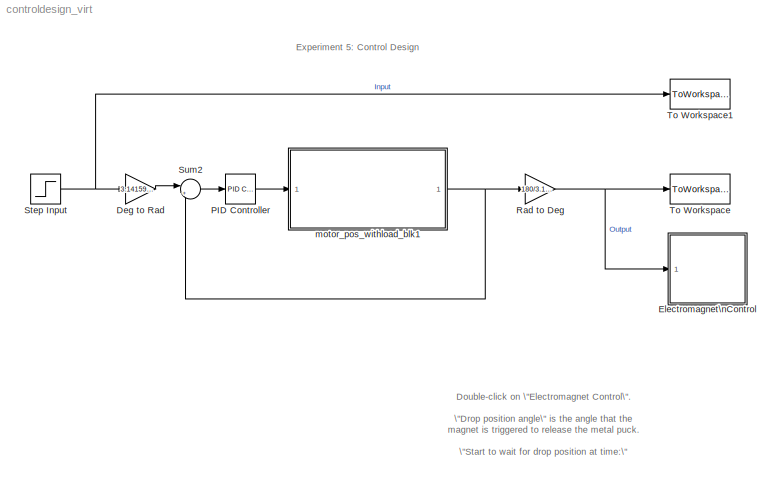
MODEL controldesign_virt
KIND model
CONFIG StopFcn = save_system(vars.simfilename);
BLOCK [Gain] Deg to Rad
  Gain = 3.14159/180
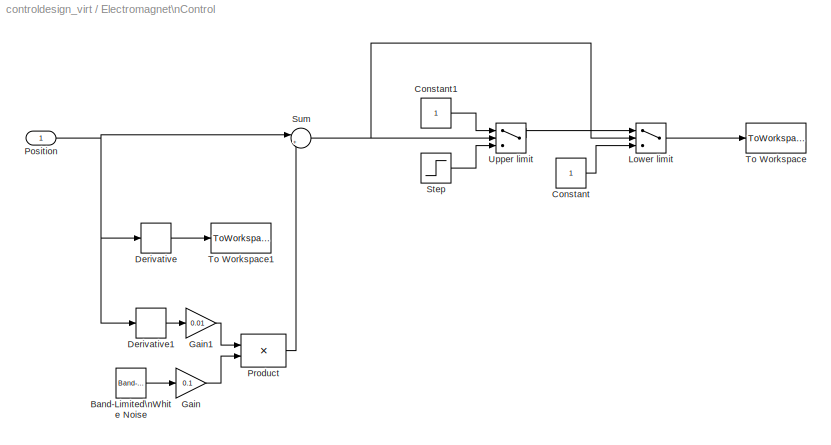
BLOCK [SubSystem] Electromagnet\nControl
  MaskCallbackString = |
  MaskEnableString = on,on
  MaskHideContents = off
  MaskIconFrame = on
  MaskIconOpaque = on
  MaskIconRotate = none
  MaskIconUnits = autoscale
  MaskPromptString = Drop position angle|Start to wait for drop position at time:
  MaskStyleString = edit,edit
  MaskTabNameString = ,
  MaskToolTipString = on,on
  MaskTunableValueString = on,on
  MaskValueString = -500|1.6
  MaskVarAliasString = ,
  MaskVariables = DropAngle=@1;Wait=@2;
  MaskVisibilityString = on,on
  MinAlgLoopOccurrences = off
  Ports = [1]
  RTWSystemCode = Auto
  TreatAsAtomicUnit = off
BLOCK [Reference] Electromagnet\nControl/Band-Limited\nWhite Noise  REF=simulink/Sources/Band-Limited\nWhite Noise
  Cov = [0.01]
  Ports = [0, 1]
  ShowPortLabels = on
  SourceBlock = simulink/Sources/Band-Limited\nWhite Noise
  SourceType = Band-Limited White Noise.
  Ts = 0.01
  VectorParams1D = on
  seed = [23341]
BLOCK [Constant] Electromagnet\nControl/Constant
BLOCK [Constant] Electromagnet\nControl/Constant1
BLOCK [Derivative] Electromagnet\nControl/Derivative
BLOCK [Derivative] Electromagnet\nControl/Derivative1
BLOCK [Gain] Electromagnet\nControl/Gain
  Gain = 0.1
BLOCK [Gain] Electromagnet\nControl/Gain1
  Gain = 0.01
BLOCK [Switch] Electromagnet\nControl/Lower limit
  Threshold = DropAngle
BLOCK [Inport] Electromagnet\nControl/Position
  IconDisplay = Port number
BLOCK [Product] Electromagnet\nControl/Product
  Ports = [2, 1]
BLOCK [Step] Electromagnet\nControl/Step
  After = 0
  Before = 1
  SampleTime = 0
  Time = Wait
BLOCK [Sum] Electromagnet\nControl/Sum
  IconShape = round
  Inputs = |++
  Ports = [2, 1]
BLOCK [ToWorkspace] Electromagnet\nControl/To Workspace
  MaxDataPoints = inf
  SampleTime = -1
  SaveFormat = Structure With Time
  VariableName = magnet
BLOCK [ToWorkspace] Electromagnet\nControl/To Workspace1
  MaxDataPoints = inf
  SampleTime = -1
  SaveFormat = Structure With Time
  VariableName = velocity
BLOCK [Switch] Electromagnet\nControl/Upper limit
  Threshold = DropAngle+1
BLOCK [Reference] PID Controller  REF=simulink_extras/Additional\nLinear/PID Controller
  D = .1
  I = 0
  P = 68
  Ports = [1, 1]
  ShowPortLabels = on
  SourceBlock = simulink_extras/Additional\nLinear/PID Controller
  SourceType = PID Controller
BLOCK [Gain] Rad to Deg
  Gain = 180/3.14159
BLOCK [Step] Step Input
  After = -500
  SampleTime = 0
  Time = 0.5
BLOCK [Sum] Sum2
  IconShape = round
  Inputs = |+-
  Ports = [2, 1]
BLOCK [ToWorkspace] To Workspace
  MaxDataPoints = inf
  SampleTime = -1
  SaveFormat = Structure With Time
  VariableName = output
BLOCK [ToWorkspace] To Workspace1
  MaxDataPoints = inf
  SampleTime = -1
  SaveFormat = Structure With Time
  VariableName = input
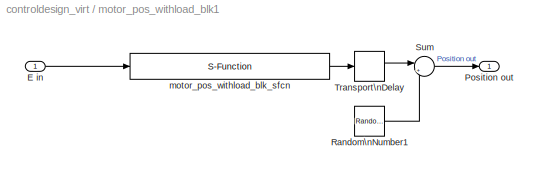
BLOCK [SubSystem] motor_pos_withload_blk1
  MaskDescription = Real-Time Workshop generated S-function.
  MaskDisplay = disp('DC Motor (Position Control)')\n
  MaskHelp = web(['file://',docroot,'/toolbox/rtw/rtwsfcn.html']);
  MaskHideContents = off
  MaskIconFrame = on
  MaskIconOpaque = on
  MaskIconRotate = none
  MaskIconUnits = autoscale
  MinAlgLoopOccurrences = off
  Ports = [1, 1]
  RTWSystemCode = Auto
  TreatAsAtomicUnit = off
BLOCK [Inport] motor_pos_withload_blk1/E in
  IconDisplay = Port number
BLOCK [Outport] motor_pos_withload_blk1/Position out
  BusOutputAsStruct = off
  IconDisplay = Port number
BLOCK [RandomNumber] motor_pos_withload_blk1/Random\nNumber1
  SampleTime = 0.005
  Variance = 0.000005
BLOCK [Sum] motor_pos_withload_blk1/Sum
  IconShape = round
  Inputs = |++
  Ports = [2, 1]
BLOCK [TransportDelay] motor_pos_withload_blk1/Transport\nDelay
  BufferSize = 10000
  DelayTime = 0.001
BLOCK [S-Function] motor_pos_withload_blk1/motor_pos_withload_blk_sfcn
  CopyFcn = set_param(gcb,'linkstatus','none')
  FunctionName = motor_pos_withlo_sf
  MaskCallbackString = |
  MaskDescription = Real-Time Workshop generated S-function.
  MaskDisplay = \nport_label('input',1,'E in');\nport_label('output',1,'Position out');
  MaskEnableString = on,on
  MaskHelp = web(['file://',docroot,'/toolbox/rtw/rtwsfcn.html']);
  MaskIconFrame = on
  MaskIconOpaque = on
  MaskIconRotate = none
  MaskIconUnits = autoscale
  MaskInitialization = displist = '';\nif ~strcmp(get_param(gcb, 'FunctionName'), rtw_sf_name);\n  set_param(gcb, 'FunctionName', rtw_sf_name);\nend\nif  showVar & exist('rtwsfunc') == 2\n  tmplist = rtwsfunc(rtw_sf_name,gcb);\n  tmplist = ['\\nList of Modules:\\n', tmplist];\nelseif showVar\n  tmplist = '\\nList of Modules:\\nRTW not licensed\\n';\nend\nif showVar\n  displist = tmplist;\nend
  MaskPromptString = Generated S-function name (model_sf):|Show module list
  MaskStyleString = edit,checkbox
  MaskTabNameString = ,
  MaskToolTipString = on,on
  MaskTunableValueString = on,on
  MaskValueString = motor_pos_withlo_sf|off
  MaskVarAliasString = ,
  MaskVariables = rtw_sf_name=&1;showVar=@2;
  MaskVisibilityString = on,on
  Ports = [1, 1]
ANNOTATION (root): Double-click on \"Electromagnet Control\".\n\n\"Drop position angle\" is the angle that the \nmagnet is triggered to release the metal puck.\n\n\"Start to wait for drop position at time:\"\nrefers to the time when the magnet trigger is \nenabled.
ANNOTATION (root): Experiment 5: Control Design
LINE Deg to Rad:1 -> Sum2:1
LINE Electromagnet\nControl/Band-Limited\nWhite Noise:1 -> Electromagnet\nControl/Gain:1
LINE Electromagnet\nControl/Constant1:1 -> Electromagnet\nControl/Upper limit:1
LINE Electromagnet\nControl/Constant:1 -> Electromagnet\nControl/Lower limit:3
LINE Electromagnet\nControl/Derivative1:1 -> Electromagnet\nControl/Gain1:1
LINE Electromagnet\nControl/Derivative:1 -> Electromagnet\nControl/To Workspace1:1
LINE Electromagnet\nControl/Gain1:1 -> Electromagnet\nControl/Product:1
LINE Electromagnet\nControl/Gain:1 -> Electromagnet\nControl/Product:2
LINE Electromagnet\nControl/Lower limit:1 -> Electromagnet\nControl/To Workspace:1
NET Electromagnet\nControl/Position:1 -> Electromagnet\nControl/Derivative1:1, Electromagnet\nControl/Derivative:1, Electromagnet\nControl/Sum:1
LINE Electromagnet\nControl/Product:1 -> Electromagnet\nControl/Sum:2
LINE Electromagnet\nControl/Step:1 -> Electromagnet\nControl/Upper limit:3
NET Electromagnet\nControl/Sum:1 -> Electromagnet\nControl/Lower limit:2, Electromagnet\nControl/Upper limit:2
LINE Electromagnet\nControl/Upper limit:1 -> Electromagnet\nControl/Lower limit:1
LINE PID Controller:1 -> motor_pos_withload_blk1:1
NET Rad to Deg:1 -> Electromagnet\nControl:1, To Workspace:1
NET Step Input:1 -> Deg to Rad:1, To Workspace1:1
LINE Sum2:1 -> PID Controller:1
LINE motor_pos_withload_blk1/E in:1 -> motor_pos_withload_blk1/motor_pos_withload_blk_sfcn:1
LINE motor_pos_withload_blk1/Random\nNumber1:1 -> motor_pos_withload_blk1/Sum:2
LINE motor_pos_withload_blk1/Sum:1 -> motor_pos_withload_blk1/Position out:1
LINE motor_pos_withload_blk1/Transport\nDelay:1 -> motor_pos_withload_blk1/Sum:1
LINE motor_pos_withload_blk1/motor_pos_withload_blk_sfcn:1 -> motor_pos_withload_blk1/Transport\nDelay:1
NET motor_pos_withload_blk1:1 -> Rad to Deg:1, Sum2:2
note: NET lines group one-source signal fan-out (src -> all destinations, sorted); 1:1 wires keep LINE
